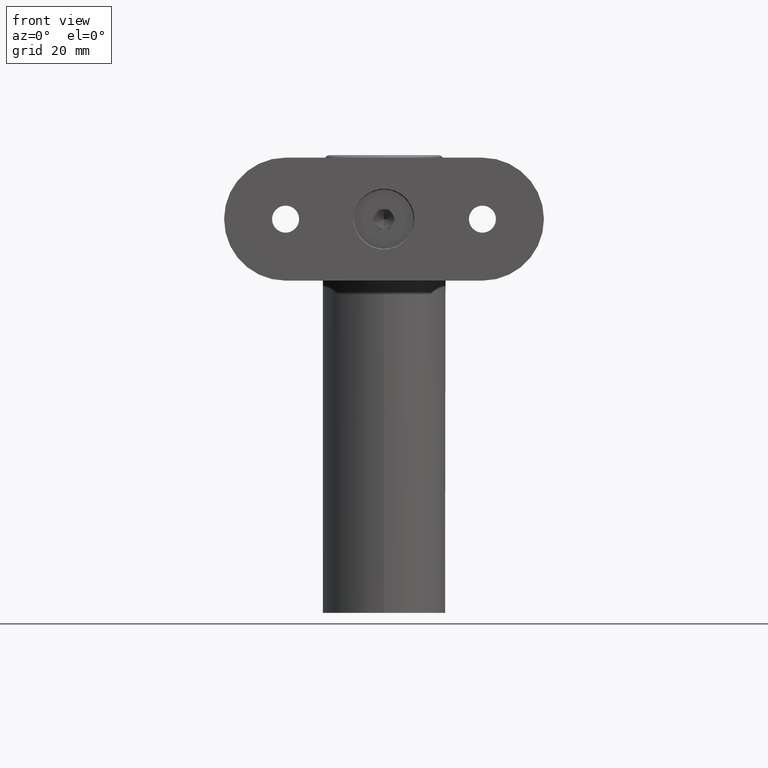
[diagram: clean part render]
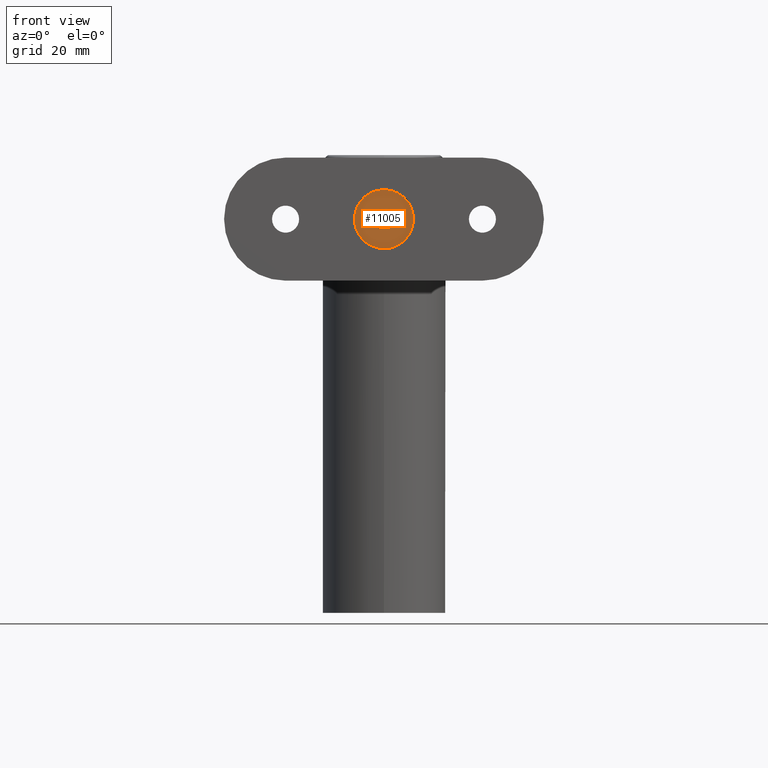
[diagram: same view with one face highlighted and labeled with its STEP entity id]
A machine part, front view. The second image highlights one B-rep face of the part: STEP entity #11005.
In plain terms, the highlighted planar face has unit normal (0, -1, 0).
Its self-contained STEP definition (entity closure, byte-faithful):
#355 = ORIENTED_EDGE ( 'NONE', *, *, #2523, .T. ) ;
#743 = CARTESIAN_POINT ( 'NONE',  ( -1.154700538379250796, 2.000000000000000000, 0.000000000000000000 ) ) ;
#890 = CARTESIAN_POINT ( 'NONE',  ( 0.000000000000000000, 1.499759782661858265E-31, -1.224646799147353454E-15 ) ) ;
#963 = VERTEX_POINT ( 'NONE', #14128 ) ;
#1059 = VERTEX_POINT ( 'NONE', #19748 ) ;
#1110 = CARTESIAN_POINT ( 'NONE',  ( 0.000000000000000000, 6.000000000000000000, 1.224646799147354440E-16 ) ) ;
#1181 = DIRECTION ( 'NONE',  ( -0.000000000000000000, 1.224646799147353454E-16, -1.000000000000000000 ) ) ;
#2017 = VERTEX_POINT ( 'NONE', #12952 ) ;
#2161 = DIRECTION ( 'NONE',  ( -0.4999999999999997780, 0.8660254037844387076, 0.000000000000000000 ) ) ;
#2418 = EDGE_CURVE ( 'NONE', #1059, #2017, #10875, .T. ) ;
#2523 = EDGE_CURVE ( 'NONE', #3451, #3675, #16620, .T. ) ;
#2982 = VECTOR ( 'NONE', #8907, 1000.000000000000114 ) ;
#3451 = VERTEX_POINT ( 'NONE', #13115 ) ;
#3520 = EDGE_CURVE ( 'NONE', #963, #1059, #7711, .T. ) ;
#3675 = VERTEX_POINT ( 'NONE', #9192 ) ;
#3816 = ORIENTED_EDGE ( 'NONE', *, *, #7053, .F. ) ;
#4164 = EDGE_CURVE ( 'NONE', #3675, #3451, #9143, .T. ) ;
#4501 = FACE_OUTER_BOUND ( 'NONE', #10019, .T. ) ;
#4791 = VERTEX_POINT ( 'NONE', #16565 ) ;
#5247 = CARTESIAN_POINT ( 'NONE',  ( -1.154700538379251462, -2.000000000000000000, 0.000000000000000000 ) ) ;
#5976 = CARTESIAN_POINT ( 'NONE',  ( -2.309401076758502924, 8.267202313460732093E-16, 0.000000000000000000 ) ) ;
#6514 = DIRECTION ( 'NONE',  ( -0.5000000000000001110, -0.8660254037844385966, -0.000000000000000000 ) ) ;
#6569 = VERTEX_POINT ( 'NONE', #15795 ) ;
#7053 = EDGE_CURVE ( 'NONE', #6569, #11559, #14489, .T. ) ;
#7362 = ORIENTED_EDGE ( 'NONE', *, *, #3520, .F. ) ;
#7600 = LINE ( 'NONE', #5247, #10745 ) ;
#7711 = LINE ( 'NONE', #15998, #19019 ) ;
#8216 = EDGE_CURVE ( 'NONE', #11559, #963, #13631, .T. ) ;
#8370 = CARTESIAN_POINT ( 'NONE',  ( -1.154700538379250796, 2.000000000000000000, 0.000000000000000000 ) ) ;
#8493 = AXIS2_PLACEMENT_3D ( 'NONE', #16299, #19407, #14884 ) ;
#8561 = FACE_BOUND ( 'NONE', #18186, .T. ) ;
#8611 = AXIS2_PLACEMENT_3D ( 'NONE', #890, #11677, #13161 ) ;
#8729 = ORIENTED_EDGE ( 'NONE', *, *, #16306, .F. ) ;
#8907 = DIRECTION ( 'NONE',  ( 0.5000000000000003331, 0.8660254037844384856, 0.000000000000000000 ) ) ;
#9143 = CIRCLE ( 'NONE', #8493, 6.000000000000000000 ) ;
#9192 = CARTESIAN_POINT ( 'NONE',  ( 7.347880794884119736E-16, -6.000000000000000000, -1.959434878635765526E-15 ) ) ;
#9558 = ORIENTED_EDGE ( 'NONE', *, *, #2418, .F. ) ;
#9796 = DIRECTION ( 'NONE',  ( 1.000000000000000000, -1.877893248421449775E-16, 0.000000000000000000 ) ) ;
#10019 = EDGE_LOOP ( 'NONE', ( #355, #12990 ) ) ;
#10022 = VECTOR ( 'NONE', #9796, 1000.000000000000000 ) ;
#10061 = EDGE_CURVE ( 'NONE', #4791, #6569, #7600, .T. ) ;
#10147 = DIRECTION ( 'NONE',  ( -1.000000000000000000, 0.000000000000000000, 0.000000000000000000 ) ) ;
#10155 = DIRECTION ( 'NONE',  ( 0.5000000000000001110, -0.8660254037844385966, 0.000000000000000000 ) ) ;
#10286 = CARTESIAN_POINT ( 'NONE',  ( 1.154700538379250796, -2.000000000000000000, -0.000000000000000000 ) ) ;
#10745 = VECTOR ( 'NONE', #2161, 1000.000000000000114 ) ;
#10875 = LINE ( 'NONE', #15978, #17597 ) ;
#11005 = ADVANCED_FACE ( 'NONE', ( #8561, #4501 ), #12030, .T. ) ;
#11559 = VERTEX_POINT ( 'NONE', #743 ) ;
#11677 = DIRECTION ( 'NONE',  ( -0.000000000000000000, 1.224646799147353454E-16, -1.000000000000000000 ) ) ;
#11907 = DIRECTION ( 'NONE',  ( 0.000000000000000000, 1.000000000000000000, 1.224646799147353454E-16 ) ) ;
#12030 = PLANE ( 'NONE',  #15869 ) ;
#12952 = CARTESIAN_POINT ( 'NONE',  ( 1.154700538379250796, -2.000000000000000000, -0.000000000000000000 ) ) ;
#12990 = ORIENTED_EDGE ( 'NONE', *, *, #4164, .T. ) ;
#13115 = CARTESIAN_POINT ( 'NONE',  ( 0.000000000000000000, 6.000000000000000000, -4.898587196589412829E-16 ) ) ;
#13161 = DIRECTION ( 'NONE',  ( 0.000000000000000000, 1.000000000000000000, 1.224646799147353700E-16 ) ) ;
#13631 = LINE ( 'NONE', #8370, #10022 ) ;
#14128 = CARTESIAN_POINT ( 'NONE',  ( 1.154700538379251684, 1.999999999999999556, 0.000000000000000000 ) ) ;
#14489 = LINE ( 'NONE', #5976, #2982 ) ;
#14884 = DIRECTION ( 'NONE',  ( 0.000000000000000000, 1.000000000000000000, 1.224646799147353700E-16 ) ) ;
#15237 = LINE ( 'NONE', #10286, #17901 ) ;
#15795 = CARTESIAN_POINT ( 'NONE',  ( -2.309401076758502480, 1.734723475976807094E-15, -6.123233995736766282E-16 ) ) ;
#15869 = AXIS2_PLACEMENT_3D ( 'NONE', #1110, #1181, #11907 ) ;
#15978 = CARTESIAN_POINT ( 'NONE',  ( 2.309401076758502924, 4.792129444551933447E-16, 0.000000000000000000 ) ) ;
#15998 = CARTESIAN_POINT ( 'NONE',  ( 1.154700538379251684, 1.999999999999999556, 0.000000000000000000 ) ) ;
#16299 = CARTESIAN_POINT ( 'NONE',  ( 0.000000000000000000, 1.499759782661858265E-31, -1.224646799147353454E-15 ) ) ;
#16306 = EDGE_CURVE ( 'NONE', #2017, #4791, #15237, .T. ) ;
#16565 = CARTESIAN_POINT ( 'NONE',  ( -1.154700538379251462, -2.000000000000000000, 0.000000000000000000 ) ) ;
#16620 = CIRCLE ( 'NONE', #8611, 6.000000000000000000 ) ;
#17058 = ORIENTED_EDGE ( 'NONE', *, *, #8216, .F. ) ;
#17597 = VECTOR ( 'NONE', #6514, 1000.000000000000114 ) ;
#17901 = VECTOR ( 'NONE', #10147, 1000.000000000000000 ) ;
#18186 = EDGE_LOOP ( 'NONE', ( #18776, #8729, #9558, #7362, #17058, #3816 ) ) ;
#18776 = ORIENTED_EDGE ( 'NONE', *, *, #10061, .F. ) ;
#19019 = VECTOR ( 'NONE', #10155, 1000.000000000000114 ) ;
#19407 = DIRECTION ( 'NONE',  ( -0.000000000000000000, 1.224646799147353454E-16, -1.000000000000000000 ) ) ;
#19748 = CARTESIAN_POINT ( 'NONE',  ( 2.309401076758502924, 4.792129444551933447E-16, 0.000000000000000000 ) ) ;